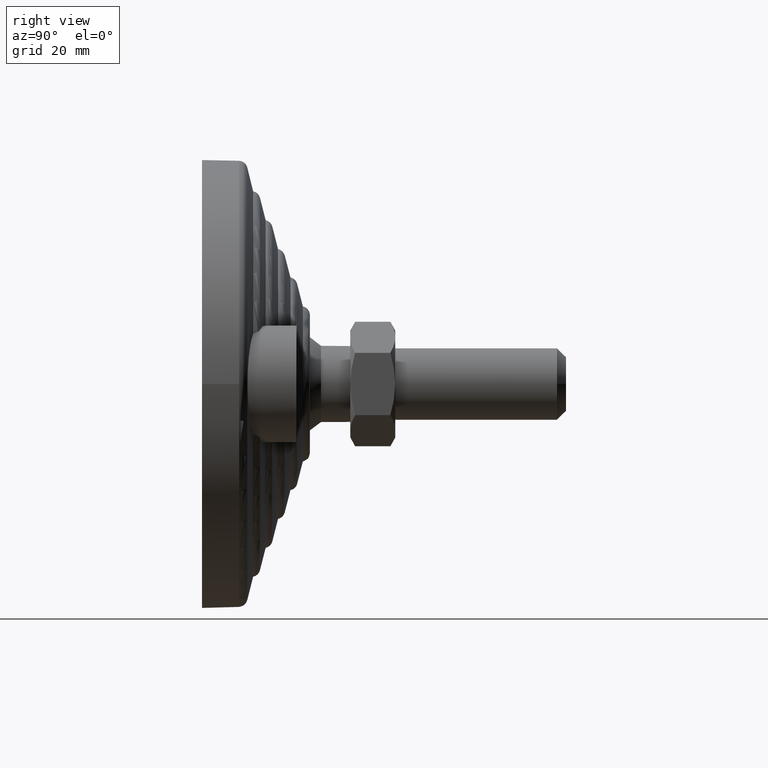
[diagram: clean part render]
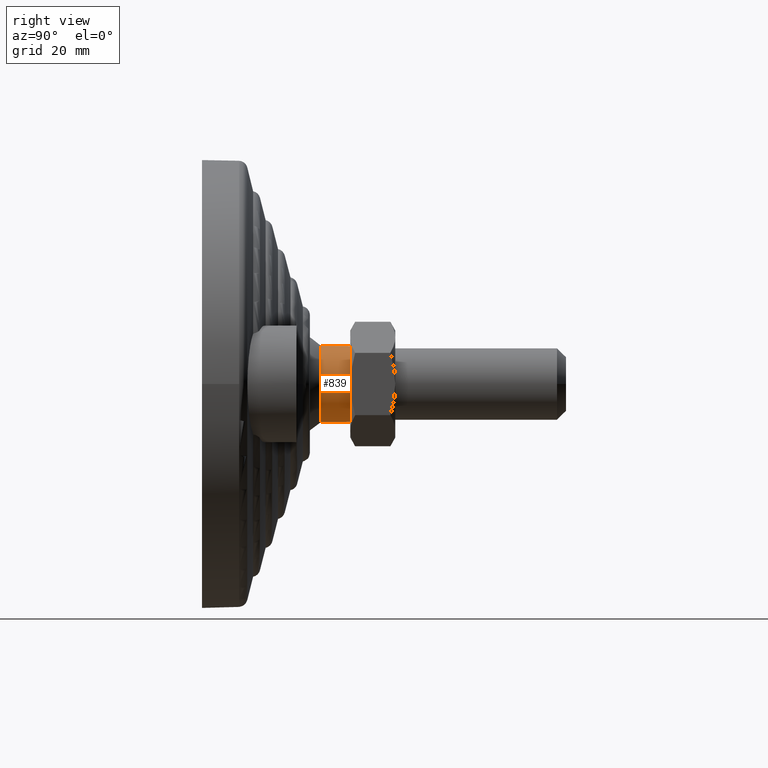
[diagram: same view with one face highlighted and labeled with its STEP entity id]
A machine part, right view. The second image highlights one B-rep face of the part: STEP entity #839.
In plain terms, the highlighted cylindrical surface (bore or boss wall) has radius 8.5 mm, axis along (0, -1, 0).
Its self-contained STEP definition (entity closure, byte-faithful):
#87=CYLINDRICAL_SURFACE('',#999,8.5);
#158=FACE_OUTER_BOUND('',#210,.T.);
#210=EDGE_LOOP('',(#749,#750,#751,#752,#753));
#240=LINE('',#1753,#265);
#265=VECTOR('',#1211,8.5);
#318=CIRCLE('',#1000,8.5);
#319=CIRCLE('',#1001,8.5);
#320=CIRCLE('',#1002,8.5);
#405=VERTEX_POINT('',#1748);
#406=VERTEX_POINT('',#1749);
#407=VERTEX_POINT('',#1752);
#525=EDGE_CURVE('',#405,#406,#318,.T.);
#526=EDGE_CURVE('',#406,#405,#319,.T.);
#527=EDGE_CURVE('',#405,#407,#240,.T.);
#528=EDGE_CURVE('',#407,#407,#320,.T.);
#749=ORIENTED_EDGE('',*,*,#525,.T.);
#750=ORIENTED_EDGE('',*,*,#526,.T.);
#751=ORIENTED_EDGE('',*,*,#527,.T.);
#752=ORIENTED_EDGE('',*,*,#528,.F.);
#753=ORIENTED_EDGE('',*,*,#527,.F.);
#839=ADVANCED_FACE('',(#158),#87,.T.);
#999=AXIS2_PLACEMENT_3D('',#1747,#1205,#1206);
#1000=AXIS2_PLACEMENT_3D('',#1750,#1207,#1208);
#1001=AXIS2_PLACEMENT_3D('',#1751,#1209,#1210);
#1002=AXIS2_PLACEMENT_3D('',#1754,#1212,#1213);
#1205=DIRECTION('center_axis',(0.,-1.,0.));
#1206=DIRECTION('ref_axis',(1.,0.,0.));
#1207=DIRECTION('center_axis',(0.,1.,0.));
#1208=DIRECTION('ref_axis',(1.,0.,0.));
#1209=DIRECTION('center_axis',(0.,1.,0.));
#1210=DIRECTION('ref_axis',(1.,0.,0.));
#1211=DIRECTION('',(0.,1.,0.));
#1212=DIRECTION('center_axis',(0.,1.,0.));
#1213=DIRECTION('ref_axis',(1.,0.,0.));
#1747=CARTESIAN_POINT('Origin',(0.,29.7352685865244,0.));
#1748=CARTESIAN_POINT('',(-8.5,26.4705371730487,1.04091540074902E-15));
#1749=CARTESIAN_POINT('',(1.04094977927525E-15,26.4705371730487,8.5));
#1750=CARTESIAN_POINT('Origin',(0.,26.4705371730487,0.));
#1751=CARTESIAN_POINT('Origin',(0.,26.4705371730487,0.));
#1752=CARTESIAN_POINT('',(-8.5,33.,1.04091540074902E-15));
#1753=CARTESIAN_POINT('',(-8.5,29.7352685865244,-1.04094977927525E-15));
#1754=CARTESIAN_POINT('Origin',(0.,33.,0.));